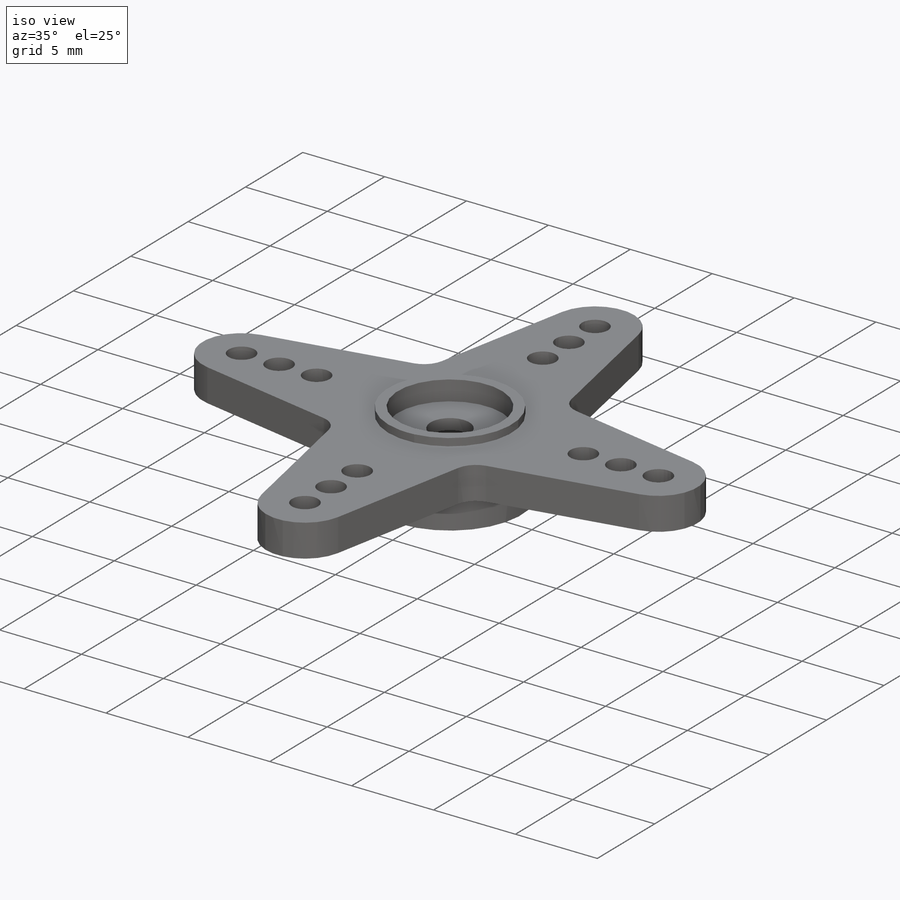
[diagram: iso view]
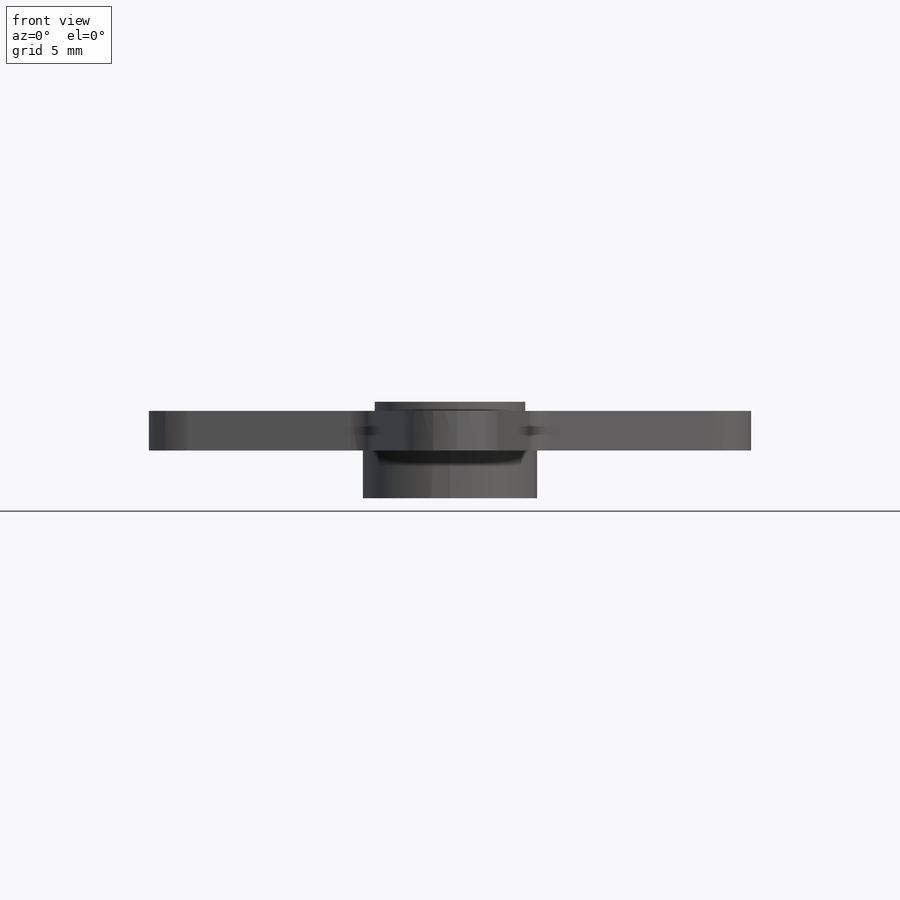
[diagram: front view]
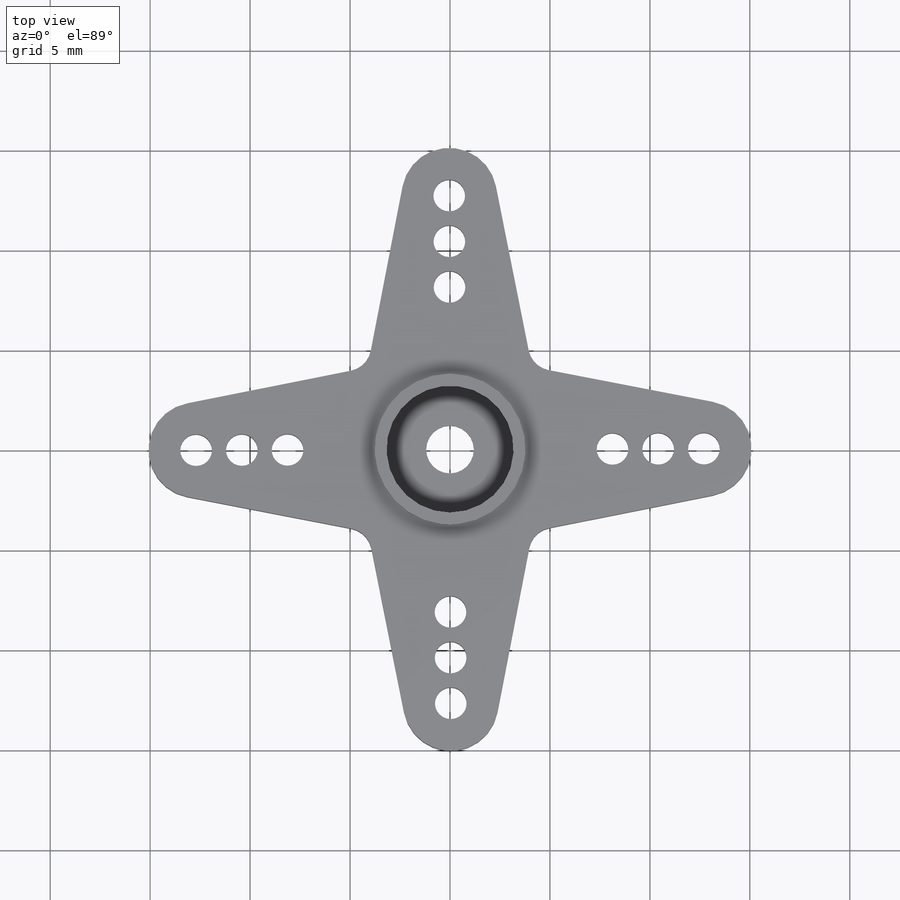
[diagram: top view]
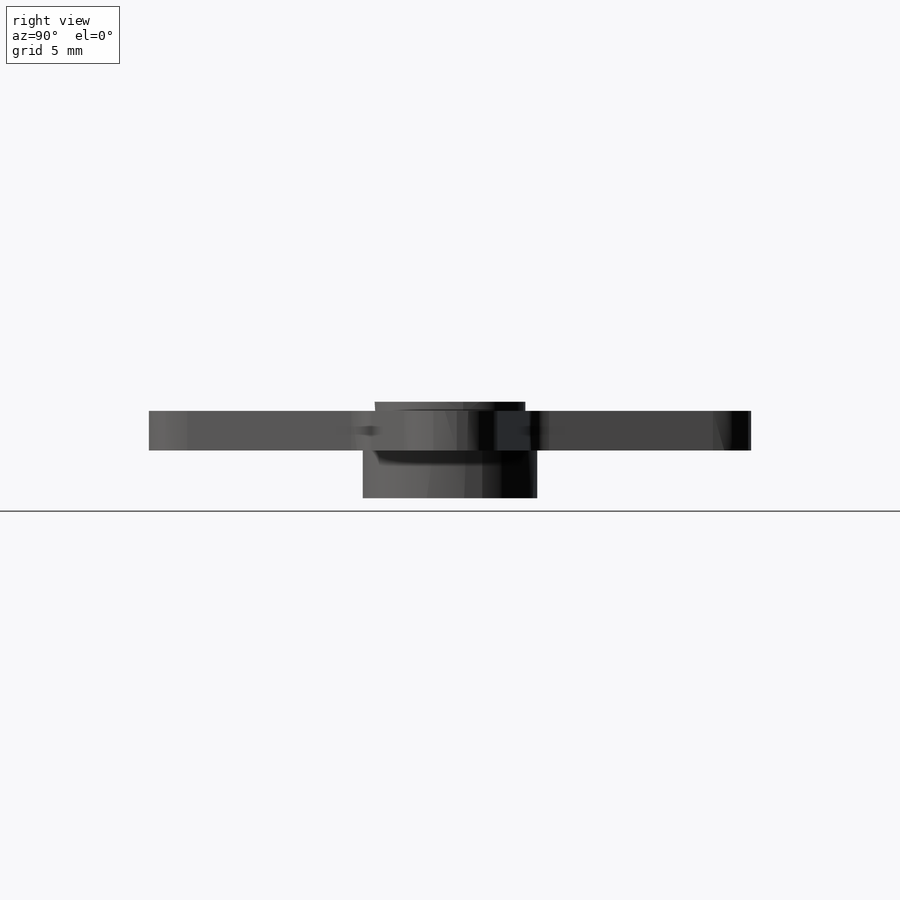
[diagram: right view]
SOLIDWORKS PART (.sldprt)
format: sldprt  version: not decoded by parser v0  size: 251,392 bytes
history: native  units: mm
features: sketch x5, extrude x3, cut_extrude x2, material x1 (+15 scaffold rows collapsed)
feature tree (26):
  scaffold x15  (default folders/planes/origin — collapsed)
  material  "Material <not specified>"
  sketch  "Sketch1"  dims[c1.D1=11.6332mm c1.D2=~2.38125mm c1.D3=~2.38125mm c1.D5=1.5875mm c1.D8=1.27mm c1.D9=1.27mm c1.D10=1.27mm c1.D11=1.27mm c2.D3=~73.971625mm c2.D4=12.7mm c2.D6=~9.079002mm c3.D6=3.0 c3.D7=4.0]
  extrude  "Boss-Extrude1"  Depth=1.984375mm
  sketch  "Sketch2"  dims[D1=6.35mm]
  cut_extrude  "Cut-Extrude1"  Depth=0.7493mm
  sketch  "Sketch3"  dims[D1=~8.73125mm]
  extrude  "Boss-Extrude2"  Depth=2.3876mm
  sketch  "Sketch4"  dims[D1=~5.55625mm]
  cut_extrude  "Cut-Extrude2"  Depth=2.9591mm
  sketch  "Sketch5"  dims[D1=~7.540625mm]
  extrude  "Boss-Extrude3"  Depth=0.4572mm
decode coverage: 10 of 10 modeling features carry decoded parameters
note: ~ marks probable driven/reference dimensions
note: suppression state not decoded; provenance and decode notes live in map.json
